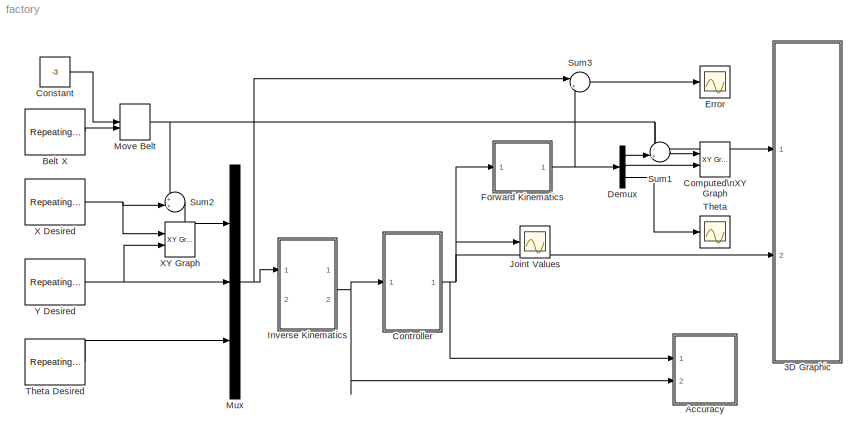
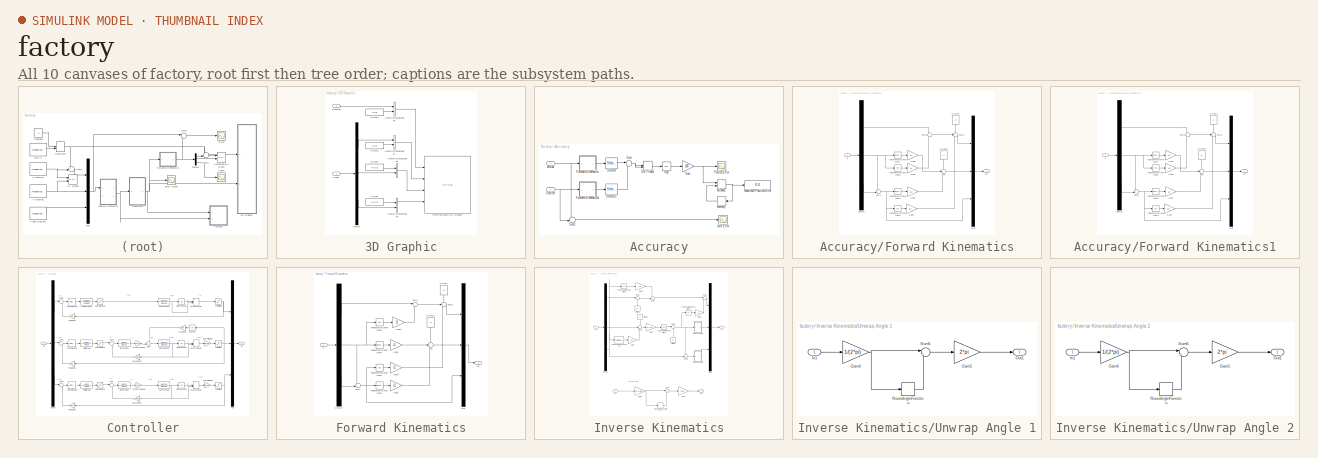
[diagram: thumbnail index - all 10 canvases of the model, root first then tree order]
MODEL factory
KIND model
CONFIG InitFcn = Factory
CONFIG PreLoadFcn = Factory
BLOCK [SubSystem] 3D Graphic
  Ports = [2]
  RequestExecContextInheritance = off
  SID = 247
  Variant = off
BLOCK [Inport] 3D Graphic/Conveyor
  IconDisplay = Port number
  SID = 248
BLOCK [Demux] 3D Graphic/Demux
  DisplayOption = bar
  Outputs = 3
  Ports = [1, 3]
  SID = 396
BLOCK [Constant] 3D Graphic/Offset
  SID = 219
  Value = [0 0 1]
BLOCK [Constant] 3D Graphic/Offset1
  SID = 197
  Value = [0 0 1]
BLOCK [Constant] 3D Graphic/Offset2
  SID = 188
  Value = [0 0]
BLOCK [Constant] 3D Graphic/Offset3
  SID = 160
  Value = [0 0]
BLOCK [Reference] 3D Graphic/Painting Booth 3-D Graphic  REF=vrlib/VR Sink
  AllowVariableSize = off
  AutoView = on
  FieldsWritten = Truck.translation.3.1.1.double#Q0.translation.3.1.1.double#Q1.rotation.4.1.1.double#Q2.rotation.4.1.1.double
  FigureProperties = {'Position', 'Name', 'Viewpoint', 'CameraBound', 'CameraDirection', 'CameraPosition', 'CameraUpVector', 'ZoomFactor', 'Antialiasing', 'Headlight', 'Lighting', 'NavPanel', 'Sound', 'StatusBar', 'Stereo3D', 'Stereo3DCameraOffset', 'Stereo3DHIT', 'ToolBar', 'Textures', 'Transparency', 'Triad', 'Wireframe', 'NavZones', 'NavMode', 'NavSpeed', 'CaptureFileFormat', 'CaptureFileName', 'Record2DCompressMet...<+710ch>
  InstantiateOnLoad = on
  Ports = [4]
  RemoteChange = off
  RemoteView = off
  SID = 425
  SampleTime = -1
  SourceBlock = vrlib/VR Sink
  SourceProductBaseCode = VR
  SourceProductName = Simulink 3D Animation
  SourceType = Virtual Reality Sink
  VideoDimensions = []
  ViewEnable = on
  WorldFileName = FACTORY.WRL
BLOCK [Inport] 3D Graphic/Robot
  IconDisplay = Port number
  Port = 2
  SID = 249
BLOCK [Concatenate] 3D Graphic/Vector\nConcatenate1
  Ports = [2, 1]
  SID = 684
BLOCK [Concatenate] 3D Graphic/Vector\nConcatenate2
  Ports = [2, 1]
  SID = 685
BLOCK [Concatenate] 3D Graphic/Vector\nConcatenate3
  Ports = [2, 1]
  SID = 686
BLOCK [Concatenate] 3D Graphic/Vector\nConcatenate5
  Ports = [2, 1]
  SID = 683
BLOCK [SubSystem] Accuracy
  Ports = [2]
  RequestExecContextInheritance = off
  SID = 581
  Variant = off
BLOCK [Inport] Accuracy/Actual
  IconDisplay = Port number
  SID = 586
BLOCK [Inport] Accuracy/Desired
  IconDisplay = Port number
  Port = 2
  SID = 587
BLOCK [DotProduct] Accuracy/Dot Product
  OutDataTypeStr = Inherit: Inherit via internal rule
  SID = 589
BLOCK [SubSystem] Accuracy/Forward Kinematics
  Ports = [1, 1]
  RequestExecContextInheritance = off
  SID = 750
  Variant = off
BLOCK [Demux] Accuracy/Forward Kinematics/Demux
  DisplayOption = bar
  Outputs = 3
  Ports = [1, 3]
  SID = 752
BLOCK [Gain] Accuracy/Forward Kinematics/Gain1
  Gain = L2
  OutDataTypeStr = Inherit: Inherit via internal rule
  ParamDataTypeStr = Inherit: Inherit via internal rule
  SID = 753
  SaturateOnIntegerOverflow = off
BLOCK [Gain] Accuracy/Forward Kinematics/Gain3
  Gain = L1
  OutDataTypeStr = Inherit: Inherit via internal rule
  ParamDataTypeStr = Inherit: Inherit via internal rule
  SID = 754
  SaturateOnIntegerOverflow = off
BLOCK [Gain] Accuracy/Forward Kinematics/Gain4
  Gain = L2
  OutDataTypeStr = Inherit: Inherit via internal rule
  ParamDataTypeStr = Inherit: Inherit via internal rule
  SID = 755
  SaturateOnIntegerOverflow = off
BLOCK [Gain] Accuracy/Forward Kinematics/Gain5
  Gain = L1
  OutDataTypeStr = Inherit: Inherit via internal rule
  ParamDataTypeStr = Inherit: Inherit via internal rule
  SID = 756
  SaturateOnIntegerOverflow = off
BLOCK [Mux] Accuracy/Forward Kinematics/Mux
  DisplayOption = bar
  Inputs = 3
  Ports = [3, 1]
  SID = 757
BLOCK [Constant] Accuracy/Forward Kinematics/Offset1
  SID = 758
  Value = L2
BLOCK [Constant] Accuracy/Forward Kinematics/Offset2
  SID = 759
  Value = L1
BLOCK [Inport] Accuracy/Forward Kinematics/Q
  IconDisplay = Port number
  SID = 751
BLOCK [Sum] Accuracy/Forward Kinematics/Sum
  IconShape = round
  InputSameDT = off
  Inputs = +++
  OutDataTypeStr = Inherit: Inherit via internal rule
  Ports = [3, 1]
  SID = 760
  SaturateOnIntegerOverflow = off
BLOCK [Sum] Accuracy/Forward Kinematics/Sum1
  IconShape = round
  InputSameDT = off
  Inputs = ++|
  OutDataTypeStr = Inherit: Inherit via internal rule
  Ports = [2, 1]
  SID = 761
  SaturateOnIntegerOverflow = off
BLOCK [Sum] Accuracy/Forward Kinematics/Sum5
  IconShape = round
  InputSameDT = off
  Inputs = +|+
  OutDataTypeStr = Inherit: Inherit via internal rule
  Ports = [2, 1]
  SID = 762
  SaturateOnIntegerOverflow = off
BLOCK [Sum] Accuracy/Forward Kinematics/Sum6
  IconShape = round
  InputSameDT = off
  Inputs = -++
  OutDataTypeStr = Inherit: Inherit via internal rule
  Ports = [3, 1]
  SID = 763
  SaturateOnIntegerOverflow = off
BLOCK [Trigonometry] Accuracy/Forward Kinematics/Trigonometric\nFunction1
  Ports = [1, 1]
  SID = 764
BLOCK [Trigonometry] Accuracy/Forward Kinematics/Trigonometric\nFunction2
  Operator = cos
  Ports = [1, 1]
  SID = 765
BLOCK [Trigonometry] Accuracy/Forward Kinematics/Trigonometric\nFunction3
  Operator = cos
  Ports = [1, 1]
  SID = 766
BLOCK [Trigonometry] Accuracy/Forward Kinematics/Trigonometric\nFunction4
  Ports = [1, 1]
  SID = 767
BLOCK [Outport] Accuracy/Forward Kinematics/XYT
  IconDisplay = Port number
  SID = 768
BLOCK [SubSystem] Accuracy/Forward Kinematics1
  Ports = [1, 1]
  RequestExecContextInheritance = off
  SID = 769
  Variant = off
BLOCK [Demux] Accuracy/Forward Kinematics1/Demux
  DisplayOption = bar
  Outputs = 3
  Ports = [1, 3]
  SID = 771
BLOCK [Gain] Accuracy/Forward Kinematics1/Gain1
  Gain = L2
  OutDataTypeStr = Inherit: Inherit via internal rule
  ParamDataTypeStr = Inherit: Inherit via internal rule
  SID = 772
  SaturateOnIntegerOverflow = off
BLOCK [Gain] Accuracy/Forward Kinematics1/Gain3
  Gain = L1
  OutDataTypeStr = Inherit: Inherit via internal rule
  ParamDataTypeStr = Inherit: Inherit via internal rule
  SID = 773
  SaturateOnIntegerOverflow = off
BLOCK [Gain] Accuracy/Forward Kinematics1/Gain4
  Gain = L2
  OutDataTypeStr = Inherit: Inherit via internal rule
  ParamDataTypeStr = Inherit: Inherit via internal rule
  SID = 774
  SaturateOnIntegerOverflow = off
BLOCK [Gain] Accuracy/Forward Kinematics1/Gain5
  Gain = L1
  OutDataTypeStr = Inherit: Inherit via internal rule
  ParamDataTypeStr = Inherit: Inherit via internal rule
  SID = 775
  SaturateOnIntegerOverflow = off
BLOCK [Mux] Accuracy/Forward Kinematics1/Mux
  DisplayOption = bar
  Inputs = 3
  Ports = [3, 1]
  SID = 776
BLOCK [Constant] Accuracy/Forward Kinematics1/Offset1
  SID = 777
  Value = L2
BLOCK [Constant] Accuracy/Forward Kinematics1/Offset2
  SID = 778
  Value = L1
BLOCK [Inport] Accuracy/Forward Kinematics1/Q
  IconDisplay = Port number
  SID = 770
BLOCK [Sum] Accuracy/Forward Kinematics1/Sum
  IconShape = round
  InputSameDT = off
  Inputs = +++
  OutDataTypeStr = Inherit: Inherit via internal rule
  Ports = [3, 1]
  SID = 779
  SaturateOnIntegerOverflow = off
BLOCK [Sum] Accuracy/Forward Kinematics1/Sum1
  IconShape = round
  InputSameDT = off
  Inputs = ++|
  OutDataTypeStr = Inherit: Inherit via internal rule
  Ports = [2, 1]
  SID = 780
  SaturateOnIntegerOverflow = off
BLOCK [Sum] Accuracy/Forward Kinematics1/Sum5
  IconShape = round
  InputSameDT = off
  Inputs = +|+
  OutDataTypeStr = Inherit: Inherit via internal rule
  Ports = [2, 1]
  SID = 781
  SaturateOnIntegerOverflow = off
BLOCK [Sum] Accuracy/Forward Kinematics1/Sum6
  IconShape = round
  InputSameDT = off
  Inputs = -++
  OutDataTypeStr = Inherit: Inherit via internal rule
  Ports = [3, 1]
  SID = 782
  SaturateOnIntegerOverflow = off
BLOCK [Trigonometry] Accuracy/Forward Kinematics1/Trigonometric\nFunction1
  Ports = [1, 1]
  SID = 783
BLOCK [Trigonometry] Accuracy/Forward Kinematics1/Trigonometric\nFunction2
  Operator = cos
  Ports = [1, 1]
  SID = 784
BLOCK [Trigonometry] Accuracy/Forward Kinematics1/Trigonometric\nFunction3
  Operator = cos
  Ports = [1, 1]
  SID = 785
BLOCK [Trigonometry] Accuracy/Forward Kinematics1/Trigonometric\nFunction4
  Ports = [1, 1]
  SID = 786
BLOCK [Outport] Accuracy/Forward Kinematics1/XYT
  IconDisplay = Port number
  SID = 787
BLOCK [Gain] Accuracy/Gain
  Gain = 100
  OutDataTypeStr = Inherit: Inherit via internal rule
  ParamDataTypeStr = Inherit: Inherit via internal rule
  SID = 795
  SaturateOnIntegerOverflow = off
BLOCK [Scope] Accuracy/Joint Error
  NumInputPorts = 1
  Ports = [1]
  SID = 618
  ScopeSpecificationString = Simulink.scopes.TimeScopeBlockCfg('CurrentConfiguration', extmgr.ConfigurationSet(extmgr.Configuration('Core','General UI',true),extmgr.Configuration('Core','Source UI',true),extmgr.Configuration('Sources','WiredSimulink',true,'DataLoggingVariableName','ScopeData3','DataLoggingLimitDataPoints',true,'DataLoggingSaveFormat','Array','DataLoggingDecimation','1','DataLoggingDecimateData',true),extmgr.C...<+1669ch>
BLOCK [Display] Accuracy/Maximum Position Error
  Decimation = 1
  Ports = [1]
  SID = 591
BLOCK [Memory] Accuracy/Memory
  SID = 793
BLOCK [MinMax] Accuracy/MinMax
  Function = max
  InputSameDT = off
  Inputs = 2
  Ports = [2, 1]
  SID = 794
  SaturateOnIntegerOverflow = off
BLOCK [Scope] Accuracy/Positon Error
  NumInputPorts = 1
  Ports = [1]
  SID = 592
  ScopeSpecificationString = Simulink.scopes.TimeScopeBlockCfg('CurrentConfiguration', extmgr.ConfigurationSet(extmgr.Configuration('Core','General UI',true),extmgr.Configuration('Core','Source UI',true),extmgr.Configuration('Sources','WiredSimulink',true,'DataLoggingVariableName','ScopeData5','DataLoggingLimitDataPoints',true,'DataLoggingSaveFormat','Array','DataLoggingDecimation','1','DataLoggingDecimateData',true),extmgr.C...<+1639ch>
BLOCK [Selector] Accuracy/Selector
  IndexOptions = Index vector (dialog)
  Indices = [1 2]
  InputPortWidth = 3
  OutputSizes = 1
  Ports = [1, 1]
  SID = 579
BLOCK [Selector] Accuracy/Selector1
  IndexOptions = Index vector (dialog)
  Indices = [1 2]
  InputPortWidth = 3
  OutputSizes = 1
  Ports = [1, 1]
  SID = 580
BLOCK [Sqrt] Accuracy/Sqrt
  SID = 590
BLOCK [Sum] Accuracy/Sum
  IconShape = round
  InputSameDT = off
  Inputs = |+-
  OutDataTypeStr = Inherit: Inherit via internal rule
  Ports = [2, 1]
  SID = 588
  SaturateOnIntegerOverflow = off
BLOCK [Sum] Accuracy/Sum1
  IconShape = round
  InputSameDT = off
  Inputs = +-|
  OutDataTypeStr = Inherit: Inherit via internal rule
  Ports = [2, 1]
  SID = 616
  SaturateOnIntegerOverflow = off
BLOCK [Reference] Belt X  REF=simulink/Sources/Repeating\nSequence\nInterpolated
  LockScale = off
  LookUpMeth = Interpolation-Use End Values
  OutDataType = fixdt(0,8)
  OutDataTypeStr = double
  OutMax = []
  OutMin = []
  OutScaling = 2^-10
  OutValues = BeltX
  OutputDataTypeScalingMode = double
  Ports = [0, 1]
  SID = 388
  SourceBlock = simulink/Sources/Repeating\nSequence\nInterpolated
  SourceProductBaseCode = SL
  SourceProductName = Simulink
  SourceType = Repeating Sequence Interpolated
  TimeValues = BeltTime
  tsamp = SampleTime
BLOCK [Reference] Computed\nXY Graph  REF=simulink/Sinks/XY Graph
  Ports = [2]
  SID = 373
  SourceBlock = simulink/Sinks/XY Graph
  SourceProductBaseCode = SL
  SourceProductName = Simulink
  SourceType = XY scope.
  st = -1
  xmax = 8
  xmin = -1
  ymax = 3
  ymin = 0
BLOCK [Constant] Constant
  SID = 788
  Value = -3
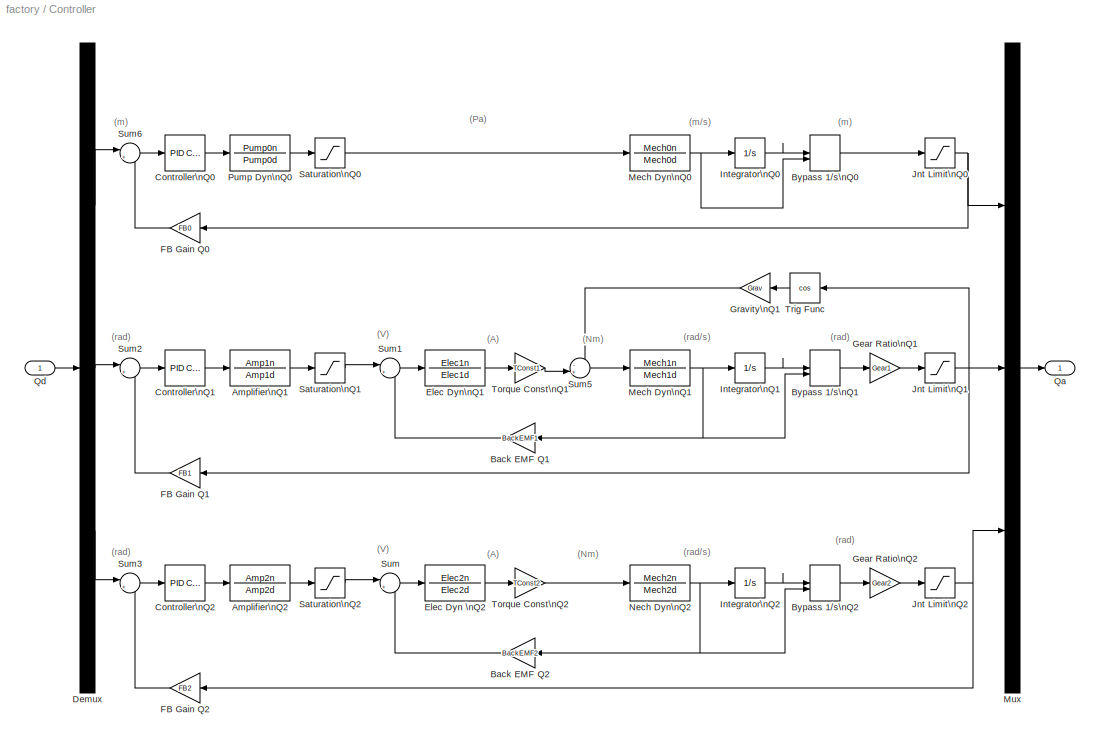
BLOCK [SubSystem] Controller
  Ports = [1, 1]
  RequestExecContextInheritance = off
  SID = 687
  Variant = off
BLOCK [TransferFcn] Controller/Amplifier\nQ1
  Denominator = Amp1d
  Numerator = Amp1n
  SID = 689
BLOCK [TransferFcn] Controller/Amplifier\nQ2
  Denominator = Amp2d
  Numerator = Amp2n
  SID = 690
BLOCK [Gain] Controller/Back EMF Q1
  Gain = BackEMF1
  OutDataTypeStr = Inherit: Inherit via internal rule
  ParamDataTypeStr = Inherit: Inherit via internal rule
  SID = 691
  SaturateOnIntegerOverflow = off
BLOCK [Gain] Controller/Back EMF Q2
  Gain = BackEMF2
  OutDataTypeStr = Inherit: Inherit via internal rule
  ParamDataTypeStr = Inherit: Inherit via internal rule
  SID = 692
  SaturateOnIntegerOverflow = off
BLOCK [ManualSwitch] Controller/Bypass 1//s\nQ0
  SID = 693
BLOCK [ManualSwitch] Controller/Bypass 1//s\nQ1
  SID = 694
BLOCK [ManualSwitch] Controller/Bypass 1//s\nQ2
  SID = 695
BLOCK [Reference] Controller/Controller\nQ0  REF=simulink/Continuous/PID Controller
  AntiWindupMode = none
  Controller = PID
  ControllerParametersSource = internal
  D = PID0(3)
  DGainOutDataTypeStr = Inherit: Inherit via internal rule
  DOutDataTypeStr = Inherit: Inherit via internal rule
  DOutMax = []
  DOutMin = []
  DParamDataTypeStr = Inherit: Inherit via internal rule
  DParamMax = []
  DParamMin = []
  DProdOutDataTypeStr = Inherit: Inherit via internal rule
  DifferentiatorICPrevScaledInput = 0
  DifferentiatorOutDataTypeStr = Inherit: Inherit via internal rule
  DifferentiatorOutMax = []
  DifferentiatorOutMin = []
  ExternalReset = none
  FilterContinuousStateAttributes = ''
  FilterMethod = Forward Euler
  FilterOutDataTypeStr = Inherit: Inherit via internal rule
  FilterOutMax = []
  FilterOutMin = []
  FilterRTWStateStorageClass = Auto
  FilterStateMustResolveToSignalObject = off
  Form = Parallel
  I = PID0(2)
  IGainOutDataTypeStr = Inherit: Inherit via internal rule
  IOutDataTypeStr = Inherit: Inherit via internal rule
  IOutMax = []
  IOutMin = []
  IParamDataTypeStr = Inherit: Inherit via internal rule
  IParamMax = []
  IParamMin = []
  IProdOutDataTypeStr = Inherit: Inherit via internal rule
  IgnoreLimit = off
  InitialConditionForFilter = 0
  InitialConditionForIntegrator = 0
  InitialConditionSetting = State (most efficient)
  InitialConditionSource = internal
  IntegratorContinuousStateAttributes = ''
  IntegratorMethod = Forward Euler
  IntegratorOutDataTypeStr = Inherit: Inherit via internal rule
  IntegratorOutMax = []
  IntegratorOutMin = []
  IntegratorRTWStateStorageClass = Auto
  IntegratorStateMustResolveToSignalObject = off
  Kb = 1
  KbOutDataTypeStr = Inherit: Inherit via internal rule
  KbOutMax = []
  KbOutMin = []
  KbParamDataTypeStr = Inherit: Inherit via internal rule
  KbParamMax = []
  KbParamMin = []
  Kt = 1
  KtOutDataTypeStr = Inherit: Inherit via internal rule
  KtOutMax = []
  KtOutMin = []
  KtParamDataTypeStr = Inherit: Inherit via internal rule
  KtParamMax = []
  KtParamMin = []
  LimitOutput = off
  LinearizeAsGain = on
  LockScale = off
  LowerSaturationLimit = -inf
  N = PID0(4)
  NGainOutDataTypeStr = Inherit: Inherit via internal rule
  NOutDataTypeStr = Inherit: Inherit via internal rule
  NOutMax = []
  NOutMin = []
  NParamDataTypeStr = Inherit: Inherit via internal rule
  NParamMax = []
  NParamMin = []
  NProdOutDataTypeStr = Inherit: Inherit via internal rule
  P = PID0(1)
  PGainOutDataTypeStr = Inherit: Inherit via internal rule
  POutDataTypeStr = Inherit: Inherit via internal rule
  POutMax = []
  POutMin = []
  PParamDataTypeStr = Inherit: Inherit via internal rule
  PParamMax = []
  PParamMin = []
  PProdOutDataTypeStr = Inherit: Inherit via internal rule
  Ports = [1, 1]
  RndMeth = Floor
  SID = 696
  SampleTime = -1
  SaturateOnIntegerOverflow = off
  SaturationOutDataTypeStr = Inherit: Same as input
  SaturationOutMax = []
  SaturationOutMin = []
  SourceBlock = simulink/Continuous/PID Controller
  SourceProductBaseCode = SL
  SourceProductName = Simulink
  SourceType = PID 1dof
  SumAccumDataTypeStr = Inherit: Inherit via internal rule
  SumDAccumDataTypeStr = Inherit: Inherit via internal rule
  SumDOutDataTypeStr = Inherit: Inherit via internal rule
  SumDOutMax = []
  SumDOutMin = []
  SumI1AccumDataTypeStr = Inherit: Inherit via internal rule
  SumI1OutDataTypeStr = Inherit: Inherit via internal rule
  SumI1OutMax = []
  SumI1OutMin = []
  SumI2AccumDataTypeStr = Inherit: Inherit via internal rule
  SumI2OutDataTypeStr = Inherit: Inherit via internal rule
  SumI2OutMax = []
  SumI2OutMin = []
  SumI3AccumDataTypeStr = Inherit: Inherit via internal rule
  SumI3OutDataTypeStr = Inherit: Inherit via internal rule
  SumI3OutMax = []
  SumI3OutMin = []
  SumOutDataTypeStr = Inherit: Inherit via internal rule
  SumOutMax = []
  SumOutMin = []
  TimeDomain = Continuous-time
  TrackingMode = off
  UpperSaturationLimit = inf
  UseFilter = on
  ZeroCross = on
BLOCK [Reference] Controller/Controller\nQ1  REF=simulink/Continuous/PID Controller
  AntiWindupMode = none
  Controller = PID
  ControllerParametersSource = internal
  D = PID1(3)
  DGainOutDataTypeStr = Inherit: Inherit via internal rule
  DOutDataTypeStr = Inherit: Inherit via internal rule
  DOutMax = []
  DOutMin = []
  DParamDataTypeStr = Inherit: Inherit via internal rule
  DParamMax = []
  DParamMin = []
  DProdOutDataTypeStr = Inherit: Inherit via internal rule
  DifferentiatorICPrevScaledInput = 0
  DifferentiatorOutDataTypeStr = Inherit: Inherit via internal rule
  DifferentiatorOutMax = []
  DifferentiatorOutMin = []
  ExternalReset = none
  FilterContinuousStateAttributes = ''
  FilterMethod = Forward Euler
  FilterOutDataTypeStr = Inherit: Inherit via internal rule
  FilterOutMax = []
  FilterOutMin = []
  FilterRTWStateStorageClass = Auto
  FilterStateMustResolveToSignalObject = off
  Form = Parallel
  I = PID1(2)
  IGainOutDataTypeStr = Inherit: Inherit via internal rule
  IOutDataTypeStr = Inherit: Inherit via internal rule
  IOutMax = []
  IOutMin = []
  IParamDataTypeStr = Inherit: Inherit via internal rule
  IParamMax = []
  IParamMin = []
  IProdOutDataTypeStr = Inherit: Inherit via internal rule
  IgnoreLimit = off
  InitialConditionForFilter = 0
  InitialConditionForIntegrator = 0
  InitialConditionSetting = State (most efficient)
  InitialConditionSource = internal
  IntegratorContinuousStateAttributes = ''
  IntegratorMethod = Forward Euler
  IntegratorOutDataTypeStr = Inherit: Inherit via internal rule
  IntegratorOutMax = []
  IntegratorOutMin = []
  IntegratorRTWStateStorageClass = Auto
  IntegratorStateMustResolveToSignalObject = off
  Kb = 1
  KbOutDataTypeStr = Inherit: Inherit via internal rule
  KbOutMax = []
  KbOutMin = []
  KbParamDataTypeStr = Inherit: Inherit via internal rule
  KbParamMax = []
  KbParamMin = []
  Kt = 1
  KtOutDataTypeStr = Inherit: Inherit via internal rule
  KtOutMax = []
  KtOutMin = []
  KtParamDataTypeStr = Inherit: Inherit via internal rule
  KtParamMax = []
  KtParamMin = []
  LimitOutput = off
  LinearizeAsGain = on
  LockScale = off
  LowerSaturationLimit = -inf
  N = PID1(4)
  NGainOutDataTypeStr = Inherit: Inherit via internal rule
  NOutDataTypeStr = Inherit: Inherit via internal rule
  NOutMax = []
  NOutMin = []
  NParamDataTypeStr = Inherit: Inherit via internal rule
  NParamMax = []
  NParamMin = []
  NProdOutDataTypeStr = Inherit: Inherit via internal rule
  P = PID1(1)
  PGainOutDataTypeStr = Inherit: Inherit via internal rule
  POutDataTypeStr = Inherit: Inherit via internal rule
  POutMax = []
  POutMin = []
  PParamDataTypeStr = Inherit: Inherit via internal rule
  PParamMax = []
  PParamMin = []
  PProdOutDataTypeStr = Inherit: Inherit via internal rule
  Ports = [1, 1]
  RndMeth = Floor
  SID = 697
  SampleTime = -1
  SaturateOnIntegerOverflow = off
  SaturationOutDataTypeStr = Inherit: Same as input
  SaturationOutMax = []
  SaturationOutMin = []
  SourceBlock = simulink/Continuous/PID Controller
  SourceProductBaseCode = SL
  SourceProductName = Simulink
  SourceType = PID 1dof
  SumAccumDataTypeStr = Inherit: Inherit via internal rule
  SumDAccumDataTypeStr = Inherit: Inherit via internal rule
  SumDOutDataTypeStr = Inherit: Inherit via internal rule
  SumDOutMax = []
  SumDOutMin = []
  SumI1AccumDataTypeStr = Inherit: Inherit via internal rule
  SumI1OutDataTypeStr = Inherit: Inherit via internal rule
  SumI1OutMax = []
  SumI1OutMin = []
  SumI2AccumDataTypeStr = Inherit: Inherit via internal rule
  SumI2OutDataTypeStr = Inherit: Inherit via internal rule
  SumI2OutMax = []
  SumI2OutMin = []
  SumI3AccumDataTypeStr = Inherit: Inherit via internal rule
  SumI3OutDataTypeStr = Inherit: Inherit via internal rule
  SumI3OutMax = []
  SumI3OutMin = []
  SumOutDataTypeStr = Inherit: Inherit via internal rule
  SumOutMax = []
  SumOutMin = []
  TimeDomain = Continuous-time
  TrackingMode = off
  UpperSaturationLimit = inf
  UseFilter = on
  ZeroCross = on
BLOCK [Reference] Controller/Controller\nQ2  REF=simulink/Continuous/PID Controller
  AntiWindupMode = none
  Controller = PID
  ControllerParametersSource = internal
  D = PID2(3)
  DGainOutDataTypeStr = Inherit: Inherit via internal rule
  DOutDataTypeStr = Inherit: Inherit via internal rule
  DOutMax = []
  DOutMin = []
  DParamDataTypeStr = Inherit: Inherit via internal rule
  DParamMax = []
  DParamMin = []
  DProdOutDataTypeStr = Inherit: Inherit via internal rule
  DifferentiatorICPrevScaledInput = 0
  DifferentiatorOutDataTypeStr = Inherit: Inherit via internal rule
  DifferentiatorOutMax = []
  DifferentiatorOutMin = []
  ExternalReset = none
  FilterContinuousStateAttributes = ''
  FilterMethod = Forward Euler
  FilterOutDataTypeStr = Inherit: Inherit via internal rule
  FilterOutMax = []
  FilterOutMin = []
  FilterRTWStateStorageClass = Auto
  FilterStateMustResolveToSignalObject = off
  Form = Parallel
  I = PID2(2)
  IGainOutDataTypeStr = Inherit: Inherit via internal rule
  IOutDataTypeStr = Inherit: Inherit via internal rule
  IOutMax = []
  IOutMin = []
  IParamDataTypeStr = Inherit: Inherit via internal rule
  IParamMax = []
  IParamMin = []
  IProdOutDataTypeStr = Inherit: Inherit via internal rule
  IgnoreLimit = off
  InitialConditionForFilter = 0
  InitialConditionForIntegrator = 0
  InitialConditionSetting = State (most efficient)
  InitialConditionSource = internal
  IntegratorContinuousStateAttributes = ''
  IntegratorMethod = Forward Euler
  IntegratorOutDataTypeStr = Inherit: Inherit via internal rule
  IntegratorOutMax = []
  IntegratorOutMin = []
  IntegratorRTWStateStorageClass = Auto
  IntegratorStateMustResolveToSignalObject = off
  Kb = 1
  KbOutDataTypeStr = Inherit: Inherit via internal rule
  KbOutMax = []
  KbOutMin = []
  KbParamDataTypeStr = Inherit: Inherit via internal rule
  KbParamMax = []
  KbParamMin = []
  Kt = 1
  KtOutDataTypeStr = Inherit: Inherit via internal rule
  KtOutMax = []
  KtOutMin = []
  KtParamDataTypeStr = Inherit: Inherit via internal rule
  KtParamMax = []
  KtParamMin = []
  LimitOutput = off
  LinearizeAsGain = on
  LockScale = off
  LowerSaturationLimit = -inf
  N = PID2(4)
  NGainOutDataTypeStr = Inherit: Inherit via internal rule
  NOutDataTypeStr = Inherit: Inherit via internal rule
  NOutMax = []
  NOutMin = []
  NParamDataTypeStr = Inherit: Inherit via internal rule
  NParamMax = []
  NParamMin = []
  NProdOutDataTypeStr = Inherit: Inherit via internal rule
  P = PID2(1)
  PGainOutDataTypeStr = Inherit: Inherit via internal rule
  POutDataTypeStr = Inherit: Inherit via internal rule
  POutMax = []
  POutMin = []
  PParamDataTypeStr = Inherit: Inherit via internal rule
  PParamMax = []
  PParamMin = []
  PProdOutDataTypeStr = Inherit: Inherit via internal rule
  Ports = [1, 1]
  RndMeth = Floor
  SID = 698
  SampleTime = -1
  SaturateOnIntegerOverflow = off
  SaturationOutDataTypeStr = Inherit: Same as input
  SaturationOutMax = []
  SaturationOutMin = []
  SourceBlock = simulink/Continuous/PID Controller
  SourceProductBaseCode = SL
  SourceProductName = Simulink
  SourceType = PID 1dof
  SumAccumDataTypeStr = Inherit: Inherit via internal rule
  SumDAccumDataTypeStr = Inherit: Inherit via internal rule
  SumDOutDataTypeStr = Inherit: Inherit via internal rule
  SumDOutMax = []
  SumDOutMin = []
  SumI1AccumDataTypeStr = Inherit: Inherit via internal rule
  SumI1OutDataTypeStr = Inherit: Inherit via internal rule
  SumI1OutMax = []
  SumI1OutMin = []
  SumI2AccumDataTypeStr = Inherit: Inherit via internal rule
  SumI2OutDataTypeStr = Inherit: Inherit via internal rule
  SumI2OutMax = []
  SumI2OutMin = []
  SumI3AccumDataTypeStr = Inherit: Inherit via internal rule
  SumI3OutDataTypeStr = Inherit: Inherit via internal rule
  SumI3OutMax = []
  SumI3OutMin = []
  SumOutDataTypeStr = Inherit: Inherit via internal rule
  SumOutMax = []
  SumOutMin = []
  TimeDomain = Continuous-time
  TrackingMode = off
  UpperSaturationLimit = inf
  UseFilter = on
  ZeroCross = on
BLOCK [Demux] Controller/Demux
  DisplayOption = bar
  Outputs = 3
  Ports = [1, 3]
  SID = 699
BLOCK [TransferFcn] Controller/Elec Dyn \nQ2
  Denominator = Elec2d
  Numerator = Elec2n
  SID = 701
BLOCK [TransferFcn] Controller/Elec Dyn\nQ1
  Denominator = Elec1d
  Numerator = Elec1n
  SID = 700
BLOCK [Gain] Controller/FB Gain Q0
  Gain = FB0
  OutDataTypeStr = Inherit: Inherit via internal rule
  ParamDataTypeStr = Inherit: Inherit via internal rule
  SID = 702
  SaturateOnIntegerOverflow = off
BLOCK [Gain] Controller/FB Gain Q1
  Gain = FB1
  OutDataTypeStr = Inherit: Inherit via internal rule
  ParamDataTypeStr = Inherit: Inherit via internal rule
  SID = 703
  SaturateOnIntegerOverflow = off
BLOCK [Gain] Controller/FB Gain Q2
  Gain = FB2
  OutDataTypeStr = Inherit: Inherit via internal rule
  ParamDataTypeStr = Inherit: Inherit via internal rule
  SID = 704
  SaturateOnIntegerOverflow = off
BLOCK [Gain] Controller/Gear Ratio\nQ1
  Gain = Gear1
  OutDataTypeStr = Inherit: Inherit via internal rule
  ParamDataTypeStr = Inherit: Inherit via internal rule
  SID = 705
  SaturateOnIntegerOverflow = off
BLOCK [Gain] Controller/Gear Ratio\nQ2
  Gain = Gear2
  OutDataTypeStr = Inherit: Inherit via internal rule
  ParamDataTypeStr = Inherit: Inherit via internal rule
  SID = 706
  SaturateOnIntegerOverflow = off
BLOCK [Gain] Controller/Gravity\nQ1
  Gain = Grav
  OutDataTypeStr = Inherit: Inherit via internal rule
  ParamDataTypeStr = Inherit: Inherit via internal rule
  SID = 707
  SaturateOnIntegerOverflow = off
BLOCK [Integrator] Controller/Integrator\nQ0
  InitialCondition = InitQ0+StartX
  Ports = [1, 1]
  SID = 708
BLOCK [Integrator] Controller/Integrator\nQ1
  InitialCondition = InitQ1
  Ports = [1, 1]
  SID = 709
BLOCK [Integrator] Controller/Integrator\nQ2
  InitialCondition = InitQ2
  Ports = [1, 1]
  SID = 710
BLOCK [Saturate] Controller/Jnt Limit\nQ0
  InputPortMap = u0
  LowerLimit = JntMin0
  Ports = [1, 1]
  SID = 711
  UpperLimit = JntMax0
BLOCK [Saturate] Controller/Jnt Limit\nQ1
  InputPortMap = u0
  LowerLimit = JntMin1
  Ports = [1, 1]
  SID = 712
  UpperLimit = JntMax1
BLOCK [Saturate] Controller/Jnt Limit\nQ2
  InputPortMap = u0
  LowerLimit = JntMin2
  Ports = [1, 1]
  SID = 713
  UpperLimit = JntMax2
BLOCK [TransferFcn] Controller/Mech Dyn\nQ0
  Denominator = Mech0d
  Numerator = Mech0n
  SID = 714
BLOCK [TransferFcn] Controller/Mech Dyn\nQ1
  Denominator = Mech1d
  Numerator = Mech1n
  SID = 715
BLOCK [Mux] Controller/Mux
  DisplayOption = bar
  Inputs = 3
  Ports = [3, 1]
  SID = 716
BLOCK [TransferFcn] Controller/Nech Dyn\nQ2
  Denominator = Mech2d
  Numerator = Mech2n
  SID = 717
BLOCK [TransferFcn] Controller/Pump Dyn\nQ0
  Denominator = Pump0d
  Numerator = Pump0n
  SID = 718
BLOCK [Outport] Controller/Qa
  IconDisplay = Port number
  SID = 732
BLOCK [Inport] Controller/Qd
  IconDisplay = Port number
  SID = 688
BLOCK [Saturate] Controller/Saturation\nQ0
  InputPortMap = u0
  LowerLimit = -Pump0sat
  Ports = [1, 1]
  SID = 719
  UpperLimit = Pump0sat
BLOCK [Saturate] Controller/Saturation\nQ1
  InputPortMap = u0
  LowerLimit = -AmpSat1
  Ports = [1, 1]
  SID = 720
  UpperLimit = AmpSat1
BLOCK [Saturate] Controller/Saturation\nQ2
  InputPortMap = u0
  LowerLimit = -AmpSat2
  Ports = [1, 1]
  SID = 721
  UpperLimit = AmpSat2
BLOCK [Sum] Controller/Sum
  IconShape = round
  InputSameDT = off
  Inputs = |+-
  OutDataTypeStr = Inherit: Inherit via internal rule
  Ports = [2, 1]
  SID = 723
  SaturateOnIntegerOverflow = off
BLOCK [Sum] Controller/Sum1
  IconShape = round
  InputSameDT = off
  Inputs = |+-
  OutDataTypeStr = Inherit: Inherit via internal rule
  Ports = [2, 1]
  SID = 724
  SaturateOnIntegerOverflow = off
BLOCK [Sum] Controller/Sum2
  IconShape = round
  InputSameDT = off
  Inputs = |+-
  OutDataTypeStr = Inherit: Inherit via internal rule
  Ports = [2, 1]
  SID = 725
  SaturateOnIntegerOverflow = off
BLOCK [Sum] Controller/Sum3
  IconShape = round
  InputSameDT = off
  Inputs = |+-
  OutDataTypeStr = Inherit: Inherit via internal rule
  Ports = [2, 1]
  SID = 726
  SaturateOnIntegerOverflow = off
BLOCK [Sum] Controller/Sum5
  IconShape = round
  InputSameDT = off
  Inputs = -+|
  OutDataTypeStr = Inherit: Inherit via internal rule
  Ports = [2, 1]
  SID = 727
  SaturateOnIntegerOverflow = off
BLOCK [Sum] Controller/Sum6
  IconShape = round
  InputSameDT = off
  Inputs = |+-
  OutDataTypeStr = Inherit: Inherit via internal rule
  Ports = [2, 1]
  SID = 728
  SaturateOnIntegerOverflow = off
BLOCK [Gain] Controller/Torque Const\nQ1
  Gain = TConst1
  OutDataTypeStr = Inherit: Inherit via internal rule
  ParamDataTypeStr = Inherit: Inherit via internal rule
  SID = 729
  SaturateOnIntegerOverflow = off
BLOCK [Gain] Controller/Torque Const\nQ2
  Gain = TConst2
  OutDataTypeStr = Inherit: Inherit via internal rule
  ParamDataTypeStr = Inherit: Inherit via internal rule
  SID = 730
  SaturateOnIntegerOverflow = off
BLOCK [Trigonometry] Controller/Trig Func
  Operator = cos
  Ports = [1, 1]
  SID = 731
BLOCK [Demux] Demux
  DisplayOption = bar
  Outputs = 3
  Ports = [1, 3]
  SID = 397
BLOCK [Scope] Error
  NumInputPorts = 1
  Ports = [1]
  SID = 404
  ScopeSpecificationString = Simulink.scopes.TimeScopeBlockCfg('CurrentConfiguration', extmgr.ConfigurationSet(extmgr.Configuration('Core','General UI',true),extmgr.Configuration('Core','Source UI',true),extmgr.Configuration('Sources','WiredSimulink',true,'DataLoggingVariableName','ScopeData2','DataLoggingLimitDataPoints',true,'DataLoggingSaveFormat','Array','DataLoggingDecimation','1','DataLoggingDecimateData',true),extmgr.C...<+1675ch>
BLOCK [SubSystem] Forward Kinematics
  Ports = [1, 1]
  RequestExecContextInheritance = off
  SID = 344
  Variant = off
BLOCK [Demux] Forward Kinematics/Demux
  DisplayOption = bar
  Outputs = 3
  Ports = [1, 3]
  SID = 394
BLOCK [Gain] Forward Kinematics/Gain1
  Gain = L2
  OutDataTypeStr = Inherit: Inherit via internal rule
  ParamDataTypeStr = Inherit: Inherit via internal rule
  SID = 349
  SaturateOnIntegerOverflow = off
BLOCK [Gain] Forward Kinematics/Gain3
  Gain = L1
  OutDataTypeStr = Inherit: Inherit via internal rule
  ParamDataTypeStr = Inherit: Inherit via internal rule
  SID = 351
  SaturateOnIntegerOverflow = off
BLOCK [Gain] Forward Kinematics/Gain4
  Gain = L2
  OutDataTypeStr = Inherit: Inherit via internal rule
  ParamDataTypeStr = Inherit: Inherit via internal rule
  SID = 368
  SaturateOnIntegerOverflow = off
BLOCK [Gain] Forward Kinematics/Gain5
  Gain = L1
  OutDataTypeStr = Inherit: Inherit via internal rule
  ParamDataTypeStr = Inherit: Inherit via internal rule
  SID = 370
  SaturateOnIntegerOverflow = off
BLOCK [Mux] Forward Kinematics/Mux
  DisplayOption = bar
  Inputs = 3
  Ports = [3, 1]
  SID = 395
BLOCK [Constant] Forward Kinematics/Offset1
  SID = 355
  Value = L2
BLOCK [Constant] Forward Kinematics/Offset2
  SID = 372
  Value = L1
BLOCK [Inport] Forward Kinematics/Q
  IconDisplay = Port number
  SID = 345
BLOCK [Sum] Forward Kinematics/Sum
  IconShape = round
  InputSameDT = off
  Inputs = +++
  OutDataTypeStr = Inherit: Inherit via internal rule
  Ports = [3, 1]
  SID = 359
  SaturateOnIntegerOverflow = off
BLOCK [Sum] Forward Kinematics/Sum1
  IconShape = round
  InputSameDT = off
  Inputs = ++|
  OutDataTypeStr = Inherit: Inherit via internal rule
  Ports = [2, 1]
  SID = 379
  SaturateOnIntegerOverflow = off
BLOCK [Sum] Forward Kinematics/Sum5
  IconShape = round
  InputSameDT = off
  Inputs = |++
  OutDataTypeStr = Inherit: Inherit via internal rule
  Ports = [2, 1]
  SID = 538
  SaturateOnIntegerOverflow = off
BLOCK [Sum] Forward Kinematics/Sum6
  IconShape = round
  InputSameDT = off
  Inputs = -++
  OutDataTypeStr = Inherit: Inherit via internal rule
  Ports = [3, 1]
  SID = 539
  SaturateOnIntegerOverflow = off
BLOCK [Trigonometry] Forward Kinematics/Trigonometric\nFunction1
  Ports = [1, 1]
  SID = 363
BLOCK [Trigonometry] Forward Kinematics/Trigonometric\nFunction2
  Operator = cos
  Ports = [1, 1]
  SID = 364
BLOCK [Trigonometry] Forward Kinematics/Trigonometric\nFunction3
  Operator = cos
  Ports = [1, 1]
  SID = 369
BLOCK [Trigonometry] Forward Kinematics/Trigonometric\nFunction4
  Ports = [1, 1]
  SID = 371
BLOCK [Outport] Forward Kinematics/XYT
  IconDisplay = Port number
  SID = 365
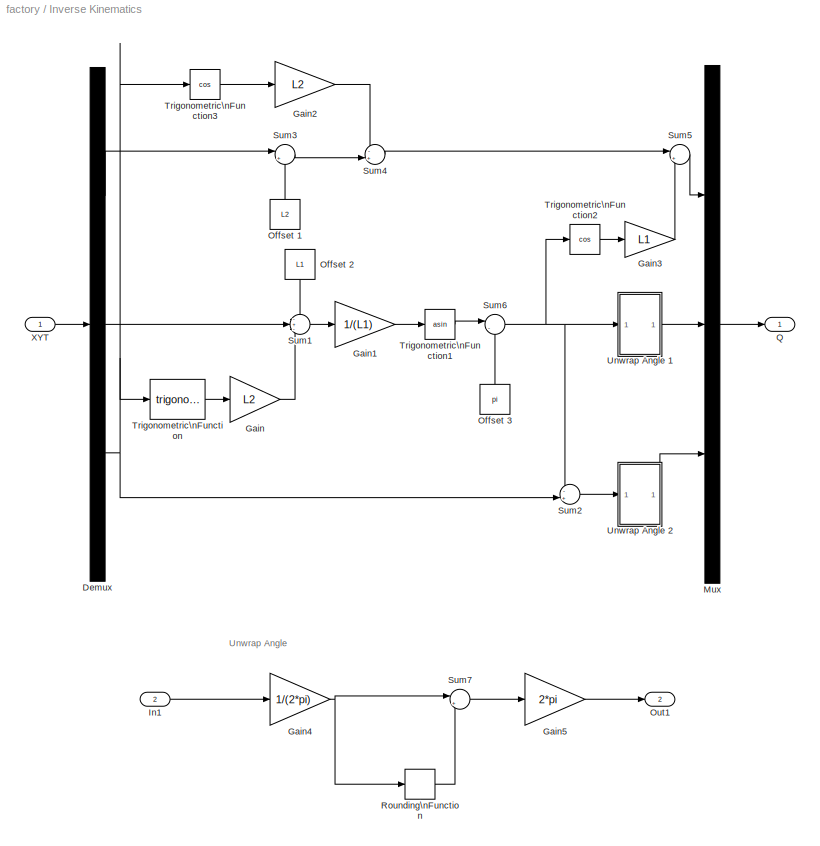
BLOCK [SubSystem] Inverse Kinematics
  Ports = [2, 2]
  RequestExecContextInheritance = off
  SID = 256
  Variant = off
BLOCK [Demux] Inverse Kinematics/Demux
  DisplayOption = bar
  Outputs = 3
  Ports = [1, 3]
  SID = 391
BLOCK [Gain] Inverse Kinematics/Gain
  Gain = L2
  OutDataTypeStr = Inherit: Inherit via internal rule
  ParamDataTypeStr = Inherit: Inherit via internal rule
  SID = 796
  SaturateOnIntegerOverflow = off
BLOCK [Gain] Inverse Kinematics/Gain1
  Gain = 1/(L1)
  OutDataTypeStr = Inherit: Inherit via internal rule
  ParamDataTypeStr = Inherit: Inherit via internal rule
  SID = 799
  SaturateOnIntegerOverflow = off
BLOCK [Gain] Inverse Kinematics/Gain2
  Gain = L2
  OutDataTypeStr = Inherit: Inherit via internal rule
  ParamDataTypeStr = Inherit: Inherit via internal rule
  SID = 800
  SaturateOnIntegerOverflow = off
BLOCK [Gain] Inverse Kinematics/Gain3
  Gain = L1
  OutDataTypeStr = Inherit: Inherit via internal rule
  ParamDataTypeStr = Inherit: Inherit via internal rule
  SID = 813
  SaturateOnIntegerOverflow = off
BLOCK [Gain] Inverse Kinematics/Gain4
  Gain = 1/(2*pi)
  OutDataTypeStr = Inherit: Inherit via internal rule
  ParamDataTypeStr = Inherit: Inherit via internal rule
  SID = 820
  SaturateOnIntegerOverflow = off
BLOCK [Gain] Inverse Kinematics/Gain5
  Gain = 2*pi
  OutDataTypeStr = Inherit: Inherit via internal rule
  ParamDataTypeStr = Inherit: Inherit via internal rule
  SID = 824
  SaturateOnIntegerOverflow = off
BLOCK [Inport] Inverse Kinematics/In1
  IconDisplay = Port number
  Port = 2
  SID = 818
BLOCK [Mux] Inverse Kinematics/Mux
  DisplayOption = bar
  Inputs = 3
  Ports = [3, 1]
  SID = 392
BLOCK [Constant] Inverse Kinematics/Offset 1
  SID = 811
  Value = L2
BLOCK [Constant] Inverse Kinematics/Offset 2
  SID = 842
  Value = L1
BLOCK [Constant] Inverse Kinematics/Offset 3
  SID = 804
  Value = pi
BLOCK [Outport] Inverse Kinematics/Out1
  IconDisplay = Port number
  Port = 2
  SID = 819
BLOCK [Outport] Inverse Kinematics/Q
  IconDisplay = Port number
  SID = 306
BLOCK [Rounding] Inverse Kinematics/Rounding\nFunction
  Operator = round
  SID = 822
BLOCK [Sum] Inverse Kinematics/Sum1
  IconShape = round
  InputSameDT = off
  Inputs = -+-
  OutDataTypeStr = Inherit: Inherit via internal rule
  Ports = [3, 1]
  SID = 798
  SaturateOnIntegerOverflow = off
BLOCK [Sum] Inverse Kinematics/Sum2
  IconShape = round
  InputSameDT = off
  Inputs = -+|
  OutDataTypeStr = Inherit: Inherit via internal rule
  Ports = [2, 1]
  SID = 805
  SaturateOnIntegerOverflow = off
BLOCK [Sum] Inverse Kinematics/Sum3
  IconShape = round
  InputSameDT = off
  Inputs = |++
  OutDataTypeStr = Inherit: Inherit via internal rule
  Ports = [2, 1]
  SID = 809
  SaturateOnIntegerOverflow = off
BLOCK [Sum] Inverse Kinematics/Sum4
  IconShape = round
  InputSameDT = off
  Inputs = -+|
  OutDataTypeStr = Inherit: Inherit via internal rule
  Ports = [2, 1]
  SID = 810
  SaturateOnIntegerOverflow = off
BLOCK [Sum] Inverse Kinematics/Sum5
  IconShape = round
  InputSameDT = off
  Inputs = |+-
  OutDataTypeStr = Inherit: Inherit via internal rule
  Ports = [2, 1]
  SID = 812
  SaturateOnIntegerOverflow = off
BLOCK [Sum] Inverse Kinematics/Sum6
  IconShape = round
  InputSameDT = off
  Inputs = |-+
  OutDataTypeStr = Inherit: Inherit via internal rule
  Ports = [2, 1]
  SID = 844
  SaturateOnIntegerOverflow = off
BLOCK [Sum] Inverse Kinematics/Sum7
  IconShape = round
  InputSameDT = off
  Inputs = |++
  OutDataTypeStr = Inherit: Inherit via internal rule
  Ports = [2, 1]
  SID = 823
  SaturateOnIntegerOverflow = off
BLOCK [Trigonometry] Inverse Kinematics/Trigonometric\nFunction
  Ports = [1, 1]
  SID = 801
BLOCK [Trigonometry] Inverse Kinematics/Trigonometric\nFunction1
  Operator = asin
  Ports = [1, 1]
  SID = 802
BLOCK [Trigonometry] Inverse Kinematics/Trigonometric\nFunction2
  Operator = cos
  Ports = [1, 1]
  SID = 806
BLOCK [Trigonometry] Inverse Kinematics/Trigonometric\nFunction3
  Operator = cos
  Ports = [1, 1]
  SID = 807
BLOCK [SubSystem] Inverse Kinematics/Unwrap Angle 1
  Ports = [1, 1]
  RequestExecContextInheritance = off
  SID = 835
  Variant = off
BLOCK [Gain] Inverse Kinematics/Unwrap Angle 1/Gain4
  Gain = 1/(2*pi)
  OutDataTypeStr = Inherit: Inherit via internal rule
  ParamDataTypeStr = Inherit: Inherit via internal rule
  SID = 837
  SaturateOnIntegerOverflow = off
BLOCK [Gain] Inverse Kinematics/Unwrap Angle 1/Gain5
  Gain = 2*pi
  OutDataTypeStr = Inherit: Inherit via internal rule
  ParamDataTypeStr = Inherit: Inherit via internal rule
  SID = 838
  SaturateOnIntegerOverflow = off
BLOCK [Inport] Inverse Kinematics/Unwrap Angle 1/In1
  IconDisplay = Port number
  SID = 836
BLOCK [Outport] Inverse Kinematics/Unwrap Angle 1/Out1
  IconDisplay = Port number
  SID = 841
BLOCK [Rounding] Inverse Kinematics/Unwrap Angle 1/Rounding\nFunction
  Operator = round
  SID = 839
BLOCK [Sum] Inverse Kinematics/Unwrap Angle 1/Sum6
  IconShape = round
  InputSameDT = off
  Inputs = |++
  OutDataTypeStr = Inherit: Inherit via internal rule
  Ports = [2, 1]
  SID = 840
  SaturateOnIntegerOverflow = off
BLOCK [SubSystem] Inverse Kinematics/Unwrap Angle 2
  Ports = [1, 1]
  RequestExecContextInheritance = off
  SID = 828
  Variant = off
BLOCK [Gain] Inverse Kinematics/Unwrap Angle 2/Gain4
  Gain = 1/(2*pi)
  OutDataTypeStr = Inherit: Inherit via internal rule
  ParamDataTypeStr = Inherit: Inherit via internal rule
  SID = 830
  SaturateOnIntegerOverflow = off
BLOCK [Gain] Inverse Kinematics/Unwrap Angle 2/Gain5
  Gain = 2*pi
  OutDataTypeStr = Inherit: Inherit via internal rule
  ParamDataTypeStr = Inherit: Inherit via internal rule
  SID = 831
  SaturateOnIntegerOverflow = off
BLOCK [Inport] Inverse Kinematics/Unwrap Angle 2/In1
  IconDisplay = Port number
  SID = 829
BLOCK [Outport] Inverse Kinematics/Unwrap Angle 2/Out1
  IconDisplay = Port number
  SID = 834
BLOCK [Rounding] Inverse Kinematics/Unwrap Angle 2/Rounding\nFunction
  Operator = round
  SID = 832
BLOCK [Sum] Inverse Kinematics/Unwrap Angle 2/Sum6
  IconShape = round
  InputSameDT = off
  Inputs = |++
  OutDataTypeStr = Inherit: Inherit via internal rule
  Ports = [2, 1]
  SID = 833
  SaturateOnIntegerOverflow = off
BLOCK [Inport] Inverse Kinematics/XYT
  IconDisplay = Port number
  SID = 257
BLOCK [Scope] Joint Values
  NumInputPorts = 1
  Ports = [1]
  SID = 390
  ScopeSpecificationString = C++SS(StrPVP('Location','[700, 60, 1430, 621]'),StrPVP('Open','off'),MxPVP('AxesTitles',53,'struct(''axes1'',''%<SignalLabel>'')'),MxPVP('ScopeGraphics',56,'struct(''FigureColor'',''[0.5 0.5 0.5]'',''AxesColor'',''[0 0 0]'',''AxesTickColor'',''[1 1 1]'',''LineColors'',''[1 1 0;1 0 1;0 1 1;1 0 0;0 1 0;0 0 1]'',''LineStyles'',''-|-|-|-|-|-'',''LineWidths'',''[0.5 0.5 0.5 0.5 0.5 0.5]'',''MarkerStyle...<+290ch>
BLOCK [ManualSwitch] Move Belt
  CurrentSetting = 0
  SID = 789
BLOCK [Mux] Mux
  DisplayOption = bar
  Inputs = 3
  Ports = [3, 1]
  SID = 393
BLOCK [Sum] Sum1
  IconShape = round
  InputSameDT = off
  Inputs = -+|
  OutDataTypeStr = Inherit: Inherit via internal rule
  Ports = [2, 1]
  SID = 401
  SaturateOnIntegerOverflow = off
BLOCK [Sum] Sum2
  IconShape = round
  InputSameDT = off
  Inputs = ++|
  OutDataTypeStr = Inherit: Inherit via internal rule
  Ports = [2, 1]
  SID = 389
  SaturateOnIntegerOverflow = off
BLOCK [Sum] Sum3
  IconShape = round
  InputSameDT = off
  Inputs = |+-
  OutDataTypeStr = Inherit: Inherit via internal rule
  Ports = [2, 1]
  SID = 403
  SaturateOnIntegerOverflow = off
BLOCK [Scope] Theta
  NumInputPorts = 1
  Ports = [1]
  SID = 398
  ScopeSpecificationString = Simulink.scopes.TimeScopeBlockCfg('CurrentConfiguration', extmgr.ConfigurationSet(extmgr.Configuration('Core','General UI',true),extmgr.Configuration('Core','Source UI',true),extmgr.Configuration('Sources','WiredSimulink',true,'DataLoggingLimitDataPoints',true,'DataLoggingSaveFormat','Array','DataLoggingDecimation','1','DataLoggingDecimateData',true),extmgr.Configuration('Visuals','Time Domain',tr...<+1613ch>
BLOCK [Reference] Theta Desired  REF=simulink/Sources/Repeating\nSequence\nInterpolated
  LockScale = off
  LookUpMeth = Interpolation-Use End Values
  OutDataType = fixdt(0,8)
  OutDataTypeStr = double
  OutMax = []
  OutMin = []
  OutScaling = 2^-10
  OutValues = Td
  OutputDataTypeScalingMode = double
  Ports = [0, 1]
  SID = 387
  SourceBlock = simulink/Sources/Repeating\nSequence\nInterpolated
  SourceProductBaseCode = SL
  SourceProductName = Simulink
  SourceType = Repeating Sequence Interpolated
  TimeValues = Time
  tsamp = SampleTime
BLOCK [Reference] X Desired  REF=simulink/Sources/Repeating\nSequence\nInterpolated
  LockScale = off
  LookUpMeth = Interpolation-Use End Values
  OutDataType = fixdt(0,8)
  OutDataTypeStr = double
  OutMax = []
  OutMin = []
  OutScaling = 2^-10
  OutValues = Xd
  OutputDataTypeScalingMode = double
  Ports = [0, 1]
  SID = 382
  SourceBlock = simulink/Sources/Repeating\nSequence\nInterpolated
  SourceProductBaseCode = SL
  SourceProductName = Simulink
  SourceType = Repeating Sequence Interpolated
  TimeValues = Time
  tsamp = SampleTime
BLOCK [Reference] XY Graph  REF=simulink/Sinks/XY Graph
  Ports = [2]
  SID = 343
  SourceBlock = simulink/Sinks/XY Graph
  SourceProductBaseCode = SL
  SourceProductName = Simulink
  SourceType = XY scope.
  st = -1
  xmax = 8
  xmin = -1
  ymax = 3
  ymin = 0
BLOCK [Reference] Y Desired  REF=simulink/Sources/Repeating\nSequence\nInterpolated
  LockScale = off
  LookUpMeth = Interpolation-Use End Values
  OutDataType = fixdt(0,8)
  OutDataTypeStr = double
  OutMax = []
  OutMin = []
  OutScaling = 2^-10
  OutValues = Yd
  OutputDataTypeScalingMode = double
  Ports = [0, 1]
  SID = 386
  SourceBlock = simulink/Sources/Repeating\nSequence\nInterpolated
  SourceProductBaseCode = SL
  SourceProductName = Simulink
  SourceType = Repeating Sequence Interpolated
  TimeValues = Time
  tsamp = SampleTime
ANNOTATION Controller: (A)
ANNOTATION Controller: (Nm)
ANNOTATION Controller: (Pa)
ANNOTATION Controller: (V)
ANNOTATION Controller: (m)
ANNOTATION Controller: (m/s)
ANNOTATION Controller: (rad)
ANNOTATION Controller: (rad/s)
ANNOTATION Inverse Kinematics: Unwrap Angle
LINE 3D Graphic/Conveyor:1 -> 3D Graphic/Vector\nConcatenate5:1
LINE 3D Graphic/Demux:1 -> 3D Graphic/Vector\nConcatenate1:1
LINE 3D Graphic/Demux:2 -> 3D Graphic/Vector\nConcatenate2:2
LINE 3D Graphic/Demux:3 -> 3D Graphic/Vector\nConcatenate3:2
LINE 3D Graphic/Offset1:1 -> 3D Graphic/Vector\nConcatenate2:1
LINE 3D Graphic/Offset2:1 -> 3D Graphic/Vector\nConcatenate1:2
LINE 3D Graphic/Offset3:1 -> 3D Graphic/Vector\nConcatenate5:2
LINE 3D Graphic/Offset:1 -> 3D Graphic/Vector\nConcatenate3:1
LINE 3D Graphic/Robot:1 -> 3D Graphic/Demux:1
LINE 3D Graphic/Vector\nConcatenate1:1 -> 3D Graphic/Painting Booth 3-D Graphic:2
LINE 3D Graphic/Vector\nConcatenate2:1 -> 3D Graphic/Painting Booth 3-D Graphic:3
LINE 3D Graphic/Vector\nConcatenate3:1 -> 3D Graphic/Painting Booth 3-D Graphic:4
LINE 3D Graphic/Vector\nConcatenate5:1 -> 3D Graphic/Painting Booth 3-D Graphic:1
NET Accuracy/Actual:1 -> Accuracy/Forward Kinematics:1, Accuracy/Sum1:1
NET Accuracy/Desired:1 -> Accuracy/Forward Kinematics1:1, Accuracy/Sum1:2
LINE Accuracy/Dot Product:1 -> Accuracy/Sqrt:1
LINE Accuracy/Forward Kinematics/Demux:1 -> Accuracy/Forward Kinematics/Sum5:1
NET Accuracy/Forward Kinematics/Demux:2 -> Accuracy/Forward Kinematics/Sum1:1, Accuracy/Forward Kinematics/Trigonometric\nFunction2:1, Accuracy/Forward Kinematics/Trigonometric\nFunction4:1
LINE Accuracy/Forward Kinematics/Demux:3 -> Accuracy/Forward Kinematics/Sum1:2
LINE Accuracy/Forward Kinematics/Gain1:1 -> Accuracy/Forward Kinematics/Sum:3
LINE Accuracy/Forward Kinematics/Gain3:1 -> Accuracy/Forward Kinematics/Sum5:2
LINE Accuracy/Forward Kinematics/Gain4:1 -> Accuracy/Forward Kinematics/Sum6:3
LINE Accuracy/Forward Kinematics/Gain5:1 -> Accuracy/Forward Kinematics/Sum:2
LINE Accuracy/Forward Kinematics/Mux:1 -> Accuracy/Forward Kinematics/XYT:1
LINE Accuracy/Forward Kinematics/Offset1:1 -> Accuracy/Forward Kinematics/Sum6:1
LINE Accuracy/Forward Kinematics/Offset2:1 -> Accuracy/Forward Kinematics/Sum:1
LINE Accuracy/Forward Kinematics/Q:1 -> Accuracy/Forward Kinematics/Demux:1
NET Accuracy/Forward Kinematics/Sum1:1 -> Accuracy/Forward Kinematics/Mux:3, Accuracy/Forward Kinematics/Trigonometric\nFunction1:1, Accuracy/Forward Kinematics/Trigonometric\nFunction3:1
LINE Accuracy/Forward Kinematics/Sum5:1 -> Accuracy/Forward Kinematics/Sum6:2
LINE Accuracy/Forward Kinematics/Sum6:1 -> Accuracy/Forward Kinematics/Mux:1
LINE Accuracy/Forward Kinematics/Sum:1 -> Accuracy/Forward Kinematics/Mux:2
LINE Accuracy/Forward Kinematics/Trigonometric\nFunction1:1 -> Accuracy/Forward Kinematics/Gain1:1
LINE Accuracy/Forward Kinematics/Trigonometric\nFunction2:1 -> Accuracy/Forward Kinematics/Gain3:1
LINE Accuracy/Forward Kinematics/Trigonometric\nFunction3:1 -> Accuracy/Forward Kinematics/Gain4:1
LINE Accuracy/Forward Kinematics/Trigonometric\nFunction4:1 -> Accuracy/Forward Kinematics/Gain5:1
LINE Accuracy/Forward Kinematics1/Demux:1 -> Accuracy/Forward Kinematics1/Sum5:1
NET Accuracy/Forward Kinematics1/Demux:2 -> Accuracy/Forward Kinematics1/Sum1:1, Accuracy/Forward Kinematics1/Trigonometric\nFunction2:1, Accuracy/Forward Kinematics1/Trigonometric\nFunction4:1
LINE Accuracy/Forward Kinematics1/Demux:3 -> Accuracy/Forward Kinematics1/Sum1:2
LINE Accuracy/Forward Kinematics1/Gain1:1 -> Accuracy/Forward Kinematics1/Sum:3
LINE Accuracy/Forward Kinematics1/Gain3:1 -> Accuracy/Forward Kinematics1/Sum5:2
LINE Accuracy/Forward Kinematics1/Gain4:1 -> Accuracy/Forward Kinematics1/Sum6:3
LINE Accuracy/Forward Kinematics1/Gain5:1 -> Accuracy/Forward Kinematics1/Sum:2
LINE Accuracy/Forward Kinematics1/Mux:1 -> Accuracy/Forward Kinematics1/XYT:1
LINE Accuracy/Forward Kinematics1/Offset1:1 -> Accuracy/Forward Kinematics1/Sum6:1
LINE Accuracy/Forward Kinematics1/Offset2:1 -> Accuracy/Forward Kinematics1/Sum:1
LINE Accuracy/Forward Kinematics1/Q:1 -> Accuracy/Forward Kinematics1/Demux:1
NET Accuracy/Forward Kinematics1/Sum1:1 -> Accuracy/Forward Kinematics1/Mux:3, Accuracy/Forward Kinematics1/Trigonometric\nFunction1:1, Accuracy/Forward Kinematics1/Trigonometric\nFunction3:1
LINE Accuracy/Forward Kinematics1/Sum5:1 -> Accuracy/Forward Kinematics1/Sum6:2
LINE Accuracy/Forward Kinematics1/Sum6:1 -> Accuracy/Forward Kinematics1/Mux:1
LINE Accuracy/Forward Kinematics1/Sum:1 -> Accuracy/Forward Kinematics1/Mux:2
LINE Accuracy/Forward Kinematics1/Trigonometric\nFunction1:1 -> Accuracy/Forward Kinematics1/Gain1:1
LINE Accuracy/Forward Kinematics1/Trigonometric\nFunction2:1 -> Accuracy/Forward Kinematics1/Gain3:1
LINE Accuracy/Forward Kinematics1/Trigonometric\nFunction3:1 -> Accuracy/Forward Kinematics1/Gain4:1
LINE Accuracy/Forward Kinematics1/Trigonometric\nFunction4:1 -> Accuracy/Forward Kinematics1/Gain5:1
LINE Accuracy/Forward Kinematics1:1 -> Accuracy/Selector1:1
LINE Accuracy/Forward Kinematics:1 -> Accuracy/Selector:1
NET Accuracy/Gain:1 -> Accuracy/MinMax:1, Accuracy/Positon Error:1
LINE Accuracy/Memory:1 -> Accuracy/MinMax:2
NET Accuracy/MinMax:1 -> Accuracy/Maximum Position Error:1, Accuracy/Memory:1
LINE Accuracy/Selector1:1 -> Accuracy/Sum:2
LINE Accuracy/Selector:1 -> Accuracy/Sum:1
LINE Accuracy/Sqrt:1 -> Accuracy/Gain:1
LINE Accuracy/Sum1:1 -> Accuracy/Joint Error:1
NET Accuracy/Sum:1 -> Accuracy/Dot Product:1, Accuracy/Dot Product:2
LINE Belt X:1 -> Move Belt:2
LINE Constant:1 -> Move Belt:1
LINE Controller/Amplifier\nQ1:1 -> Controller/Saturation\nQ1:1
LINE Controller/Amplifier\nQ2:1 -> Controller/Saturation\nQ2:1
LINE Controller/Back EMF Q1:1 -> Controller/Sum1:2
LINE Controller/Back EMF Q2:1 -> Controller/Sum:2
LINE Controller/Bypass 1//s\nQ0:1 -> Controller/Jnt Limit\nQ0:1
LINE Controller/Bypass 1//s\nQ1:1 -> Controller/Gear Ratio\nQ1:1
LINE Controller/Bypass 1//s\nQ2:1 -> Controller/Gear Ratio\nQ2:1
LINE Controller/Controller\nQ0:1 -> Controller/Pump Dyn\nQ0:1
LINE Controller/Controller\nQ1:1 -> Controller/Amplifier\nQ1:1
LINE Controller/Controller\nQ2:1 -> Controller/Amplifier\nQ2:1
LINE Controller/Demux:1 -> Controller/Sum6:1
LINE Controller/Demux:2 -> Controller/Sum2:1
LINE Controller/Demux:3 -> Controller/Sum3:1
LINE Controller/Elec Dyn \nQ2:1 -> Controller/Torque Const\nQ2:1
LINE Controller/Elec Dyn\nQ1:1 -> Controller/Torque Const\nQ1:1
LINE Controller/FB Gain Q0:1 -> Controller/Sum6:2
LINE Controller/FB Gain Q1:1 -> Controller/Sum2:2
LINE Controller/FB Gain Q2:1 -> Controller/Sum3:2
LINE Controller/Gear Ratio\nQ1:1 -> Controller/Jnt Limit\nQ1:1
LINE Controller/Gear Ratio\nQ2:1 -> Controller/Jnt Limit\nQ2:1
LINE Controller/Gravity\nQ1:1 -> Controller/Sum5:1
LINE Controller/Integrator\nQ0:1 -> Controller/Bypass 1//s\nQ0:1
LINE Controller/Integrator\nQ1:1 -> Controller/Bypass 1//s\nQ1:1
LINE Controller/Integrator\nQ2:1 -> Controller/Bypass 1//s\nQ2:1
NET Controller/Jnt Limit\nQ0:1 -> Controller/FB Gain Q0:1, Controller/Mux:1
NET Controller/Jnt Limit\nQ1:1 -> Controller/FB Gain Q1:1, Controller/Mux:2, Controller/Trig Func:1
NET Controller/Jnt Limit\nQ2:1 -> Controller/FB Gain Q2:1, Controller/Mux:3
NET Controller/Mech Dyn\nQ0:1 -> Controller/Bypass 1//s\nQ0:2, Controller/Integrator\nQ0:1
NET Controller/Mech Dyn\nQ1:1 -> Controller/Back EMF Q1:1, Controller/Bypass 1//s\nQ1:2, Controller/Integrator\nQ1:1
LINE Controller/Mux:1 -> Controller/Qa:1
NET Controller/Nech Dyn\nQ2:1 -> Controller/Back EMF Q2:1, Controller/Bypass 1//s\nQ2:2, Controller/Integrator\nQ2:1
LINE Controller/Pump Dyn\nQ0:1 -> Controller/Saturation\nQ0:1
LINE Controller/Qd:1 -> Controller/Demux:1
LINE Controller/Saturation\nQ0:1 -> Controller/Mech Dyn\nQ0:1
LINE Controller/Saturation\nQ1:1 -> Controller/Sum1:1
LINE Controller/Saturation\nQ2:1 -> Controller/Sum:1
LINE Controller/Sum1:1 -> Controller/Elec Dyn\nQ1:1
LINE Controller/Sum2:1 -> Controller/Controller\nQ1:1
LINE Controller/Sum3:1 -> Controller/Controller\nQ2:1
LINE Controller/Sum5:1 -> Controller/Mech Dyn\nQ1:1
LINE Controller/Sum6:1 -> Controller/Controller\nQ0:1
LINE Controller/Sum:1 -> Controller/Elec Dyn \nQ2:1
LINE Controller/Torque Const\nQ1:1 -> Controller/Sum5:2
LINE Controller/Torque Const\nQ2:1 -> Controller/Nech Dyn\nQ2:1
LINE Controller/Trig Func:1 -> Controller/Gravity\nQ1:1
NET Controller:1 -> 3D Graphic:2, Accuracy:1, Forward Kinematics:1, Joint Values:1
LINE Demux:1 -> Sum1:2
LINE Demux:2 -> Computed\nXY Graph:2
LINE Demux:3 -> Theta:1
LINE Forward Kinematics/Demux:1 -> Forward Kinematics/Sum5:1
NET Forward Kinematics/Demux:2 -> Forward Kinematics/Sum1:1, Forward Kinematics/Trigonometric\nFunction2:1, Forward Kinematics/Trigonometric\nFunction4:1
LINE Forward Kinematics/Demux:3 -> Forward Kinematics/Sum1:2
LINE Forward Kinematics/Gain1:1 -> Forward Kinematics/Sum:3
LINE Forward Kinematics/Gain3:1 -> Forward Kinematics/Sum5:2
LINE Forward Kinematics/Gain4:1 -> Forward Kinematics/Sum6:3
LINE Forward Kinematics/Gain5:1 -> Forward Kinematics/Sum:2
LINE Forward Kinematics/Mux:1 -> Forward Kinematics/XYT:1
LINE Forward Kinematics/Offset1:1 -> Forward Kinematics/Sum6:1
LINE Forward Kinematics/Offset2:1 -> Forward Kinematics/Sum:1
LINE Forward Kinematics/Q:1 -> Forward Kinematics/Demux:1
NET Forward Kinematics/Sum1:1 -> Forward Kinematics/Mux:3, Forward Kinematics/Trigonometric\nFunction1:1, Forward Kinematics/Trigonometric\nFunction3:1
LINE Forward Kinematics/Sum5:1 -> Forward Kinematics/Sum6:2
LINE Forward Kinematics/Sum6:1 -> Forward Kinematics/Mux:1
LINE Forward Kinematics/Sum:1 -> Forward Kinematics/Mux:2
LINE Forward Kinematics/Trigonometric\nFunction1:1 -> Forward Kinematics/Gain1:1
LINE Forward Kinematics/Trigonometric\nFunction2:1 -> Forward Kinematics/Gain3:1
LINE Forward Kinematics/Trigonometric\nFunction3:1 -> Forward Kinematics/Gain4:1
LINE Forward Kinematics/Trigonometric\nFunction4:1 -> Forward Kinematics/Gain5:1
NET Forward Kinematics:1 -> Demux:1, Sum3:2
LINE Inverse Kinematics/Demux:1 -> Inverse Kinematics/Sum3:1
LINE Inverse Kinematics/Demux:2 -> Inverse Kinematics/Sum1:2
NET Inverse Kinematics/Demux:3 -> Inverse Kinematics/Sum2:2, Inverse Kinematics/Trigonometric\nFunction3:1, Inverse Kinematics/Trigonometric\nFunction:1
LINE Inverse Kinematics/Gain1:1 -> Inverse Kinematics/Trigonometric\nFunction1:1
LINE Inverse Kinematics/Gain2:1 -> Inverse Kinematics/Sum4:1
LINE Inverse Kinematics/Gain3:1 -> Inverse Kinematics/Sum5:2
NET Inverse Kinematics/Gain4:1 -> Inverse Kinematics/Rounding\nFunction:1, Inverse Kinematics/Sum7:1
LINE Inverse Kinematics/Gain5:1 -> Inverse Kinematics/Out1:1
LINE Inverse Kinematics/Gain:1 -> Inverse Kinematics/Sum1:3
LINE Inverse Kinematics/In1:1 -> Inverse Kinematics/Gain4:1
LINE Inverse Kinematics/Mux:1 -> Inverse Kinematics/Q:1
LINE Inverse Kinematics/Offset 1:1 -> Inverse Kinematics/Sum3:2
LINE Inverse Kinematics/Offset 2:1 -> Inverse Kinematics/Sum1:1
LINE Inverse Kinematics/Offset 3:1 -> Inverse Kinematics/Sum6:2
LINE Inverse Kinematics/Rounding\nFunction:1 -> Inverse Kinematics/Sum7:2
LINE Inverse Kinematics/Sum1:1 -> Inverse Kinematics/Gain1:1
LINE Inverse Kinematics/Sum2:1 -> Inverse Kinematics/Unwrap Angle 2:1
LINE Inverse Kinematics/Sum3:1 -> Inverse Kinematics/Sum4:2
LINE Inverse Kinematics/Sum4:1 -> Inverse Kinematics/Sum5:1
LINE Inverse Kinematics/Sum5:1 -> Inverse Kinematics/Mux:1
NET Inverse Kinematics/Sum6:1 -> Inverse Kinematics/Sum2:1, Inverse Kinematics/Trigonometric\nFunction2:1, Inverse Kinematics/Unwrap Angle 1:1
LINE Inverse Kinematics/Sum7:1 -> Inverse Kinematics/Gain5:1
LINE Inverse Kinematics/Trigonometric\nFunction1:1 -> Inverse Kinematics/Sum6:1
LINE Inverse Kinematics/Trigonometric\nFunction2:1 -> Inverse Kinematics/Gain3:1
LINE Inverse Kinematics/Trigonometric\nFunction3:1 -> Inverse Kinematics/Gain2:1
LINE Inverse Kinematics/Trigonometric\nFunction:1 -> Inverse Kinematics/Gain:1
NET Inverse Kinematics/Unwrap Angle 1/Gain4:1 -> Inverse Kinematics/Unwrap Angle 1/Rounding\nFunction:1, Inverse Kinematics/Unwrap Angle 1/Sum6:1
LINE Inverse Kinematics/Unwrap Angle 1/Gain5:1 -> Inverse Kinematics/Unwrap Angle 1/Out1:1
LINE Inverse Kinematics/Unwrap Angle 1/In1:1 -> Inverse Kinematics/Unwrap Angle 1/Gain4:1
LINE Inverse Kinematics/Unwrap Angle 1/Rounding\nFunction:1 -> Inverse Kinematics/Unwrap Angle 1/Sum6:2
LINE Inverse Kinematics/Unwrap Angle 1/Sum6:1 -> Inverse Kinematics/Unwrap Angle 1/Gain5:1
LINE Inverse Kinematics/Unwrap Angle 1:1 -> Inverse Kinematics/Mux:2
NET Inverse Kinematics/Unwrap Angle 2/Gain4:1 -> Inverse Kinematics/Unwrap Angle 2/Rounding\nFunction:1, Inverse Kinematics/Unwrap Angle 2/Sum6:1
LINE Inverse Kinematics/Unwrap Angle 2/Gain5:1 -> Inverse Kinematics/Unwrap Angle 2/Out1:1
LINE Inverse Kinematics/Unwrap Angle 2/In1:1 -> Inverse Kinematics/Unwrap Angle 2/Gain4:1
LINE Inverse Kinematics/Unwrap Angle 2/Rounding\nFunction:1 -> Inverse Kinematics/Unwrap Angle 2/Sum6:2
LINE Inverse Kinematics/Unwrap Angle 2/Sum6:1 -> Inverse Kinematics/Unwrap Angle 2/Gain5:1
LINE Inverse Kinematics/Unwrap Angle 2:1 -> Inverse Kinematics/Mux:3
LINE Inverse Kinematics/XYT:1 -> Inverse Kinematics/Demux:1
NET Inverse Kinematics:1 -> Accuracy:2, Controller:1
NET Move Belt:1 -> 3D Graphic:1, Sum1:1, Sum2:1
NET Mux:1 -> Inverse Kinematics:1, Sum3:1
LINE Sum1:1 -> Computed\nXY Graph:1
LINE Sum2:1 -> Mux:1
LINE Sum3:1 -> Error:1
LINE Theta Desired:1 -> Mux:3
NET X Desired:1 -> Sum2:2, XY Graph:1
NET Y Desired:1 -> Mux:2, XY Graph:2
note: NET lines group one-source signal fan-out (src -> all destinations, sorted); 1:1 wires keep LINE
